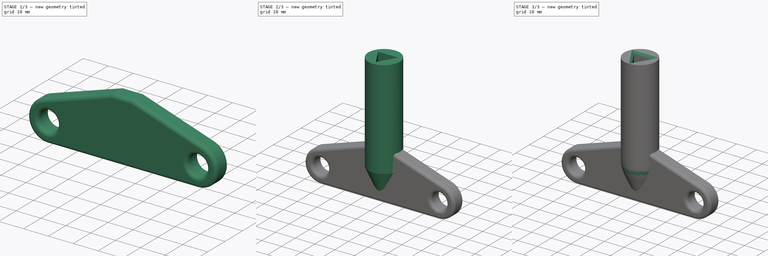
[diagram: build sequence overview — one tinted view per stage of 3, left to right]
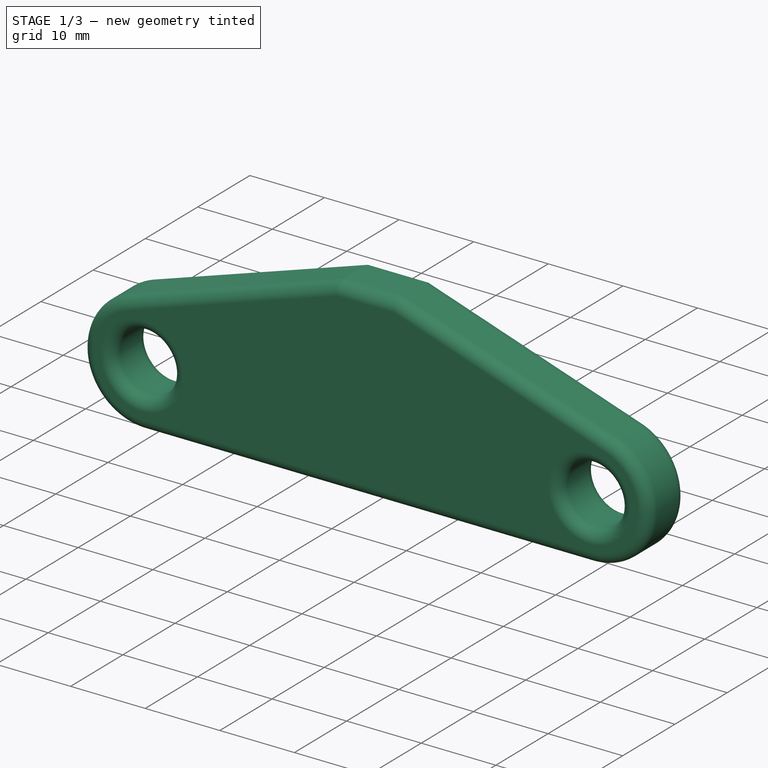
[diagram: stage 1 of 3 — iso view after this stage's code; geometry added in this stage tinted green]
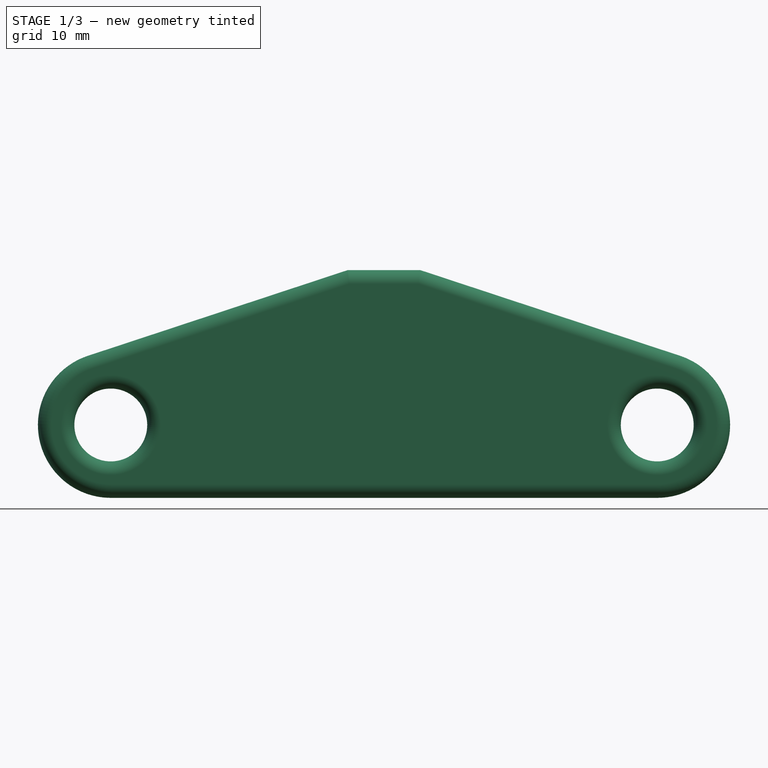
[diagram: stage 1 of 3 — front view after this stage's code; geometry added in this stage tinted green]
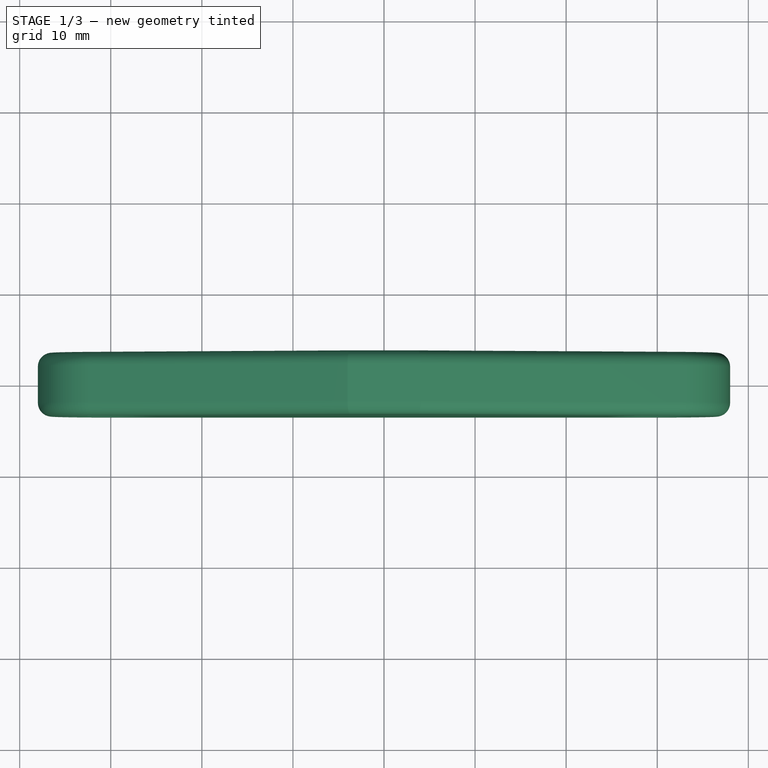
[diagram: stage 1 of 3 — top view after this stage's code; geometry added in this stage tinted green]
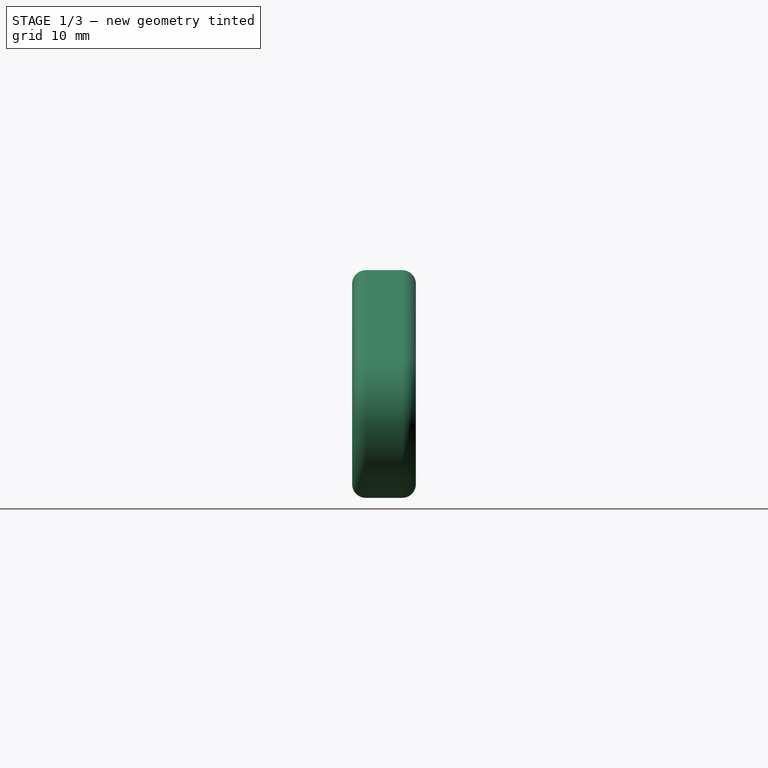
[diagram: stage 1 of 3 — right view after this stage's code; geometry added in this stage tinted green]
FCSTD DOCUMENT  (FreeCAD 0.19R24276 (Git))
Label: PoleKey
License: All rights reserved
LicenseURL: http://en.wikipedia.org/wiki/All_rights_reserved
objects: Sketcher::SketchObject×4, PartDesign::Pad×3, PartDesign::Fillet×2, PartDesign::Chamfer×2, PartDesign::Body×1
note: 19 computed .brp shape members not serialized (recipe doc carries the construction recipe); baked Part::Feature solids carry a one-line shape summary decoded from their .brp

FEATURE [Sketcher::SketchObject] Sketch  label="Template"
  FullyConstrained = true
  MapMode = 5
  Support = -> [XY_Plane]
  sketch-geometry (5):
    g0: Circle CenterX=0 CenterY=0 CenterZ=0 NormalX=0 NormalY=0 NormalZ=1 AngleXU=0 Radius=8
    g1: LineSegment StartX=-5.1 StartY=2.94449 StartZ=0 EndX=5.1 EndY=2.94449 EndZ=0
    g2: LineSegment StartX=5.1 StartY=2.94449 StartZ=0 EndX=0 EndY=-5.88897 EndZ=0
    g3: LineSegment StartX=0 StartY=-5.88897 StartZ=0 EndX=-5.1 EndY=2.94449 EndZ=0
    g4: Circle CenterX=0 CenterY=0 CenterZ=0 NormalX=0 NormalY=0 NormalZ=1 AngleXU=0 Radius=2.94449
  constraints (13):
    c: Radius(g0) = 8  'Radius'
    c: Horizontal(g1)
    c: Coincident(g1,g2)
    c: Coincident(g2,g3)
    c: Coincident(g3,g1)
    c: Equal(g3,g2)
    c: Equal(g2,g1)
    c: Tangent(g2,g4)
    c: Tangent(g1,g4)
    c: Tangent(g3,g4)
    c: Coincident(g4,g0)
    c: DistanceX(g1,g1) = 10.2
    c: Coincident(g0,g-1)
FEATURE [Sketcher::SketchObject] Sketch001
  AttachmentOffset = pos=(0,0,5) rot=(0,0,1;0rad)
  ExternalGeometry = -> [Sketch]
  FullyConstrained = true
  MapMode = 5
  Placement = pos=(0,0,5) rot=(0,0,1;0rad)
  Support = -> [XY_Plane]
  sketch-geometry (1):
    g0: Circle CenterX=0 CenterY=0 CenterZ=0 NormalX=0 NormalY=0 NormalZ=1 AngleXU=0 Radius=8
  constraints (2):
    c: Coincident(g0,g-3)
    c: Equal(g0,g-3)
FEATURE [Sketcher::SketchObject] Sketch002
  AttachmentOffset = pos=(0,0,55) rot=(0,0,1;0rad)
  ExternalGeometry = -> [Sketch]
  FullyConstrained = true
  MapMode = 5
  Placement = pos=(0,0,55) rot=(0,0,1;0rad)
  Support = -> [XY_Plane]
  expr: .AttachmentOffset.Base.z = <<Sketch001>>.AttachmentOffset.Base.z + <<Pad>>.Length
  sketch-geometry (4):
    g0: Circle CenterX=0 CenterY=0 CenterZ=0 NormalX=0 NormalY=0 NormalZ=1 AngleXU=0 Radius=8
    g1: LineSegment StartX=-5.1 StartY=2.94449 StartZ=0 EndX=5.1 EndY=2.94449 EndZ=0
    g2: LineSegment StartX=5.1 StartY=2.94449 StartZ=0 EndX=9e-16 EndY=-5.88897 EndZ=0
    g3: LineSegment StartX=9e-16 StartY=-5.88897 StartZ=0 EndX=-5.1 EndY=2.94449 EndZ=0
  constraints (8):
    c: Coincident(g0,g-3)
    c: Equal(g0,g-3)
    c: Coincident(g-6,g1)
    c: Coincident(g1,g-5)
    c: Coincident(g1,g2)
    c: Coincident(g2,g-6)
    c: Coincident(g2,g3)
    c: Coincident(g3,g1)
FEATURE [Sketcher::SketchObject] Sketch003
  FullyConstrained = true
  MapMode = 5
  Placement = pos=(0,0,0) rot=(1,0,0;1.5708rad)
  Support = -> [XZ_Plane]
  expr: Constraints[10] = <<Template>>.Constraints.Radius
  sketch-geometry (8):
    g0: LineSegment StartX=-30 StartY=0 StartZ=0 EndX=30 EndY=0 EndZ=0
    g1: ArcOfCircle CenterX=-30 CenterY=8 CenterZ=0 NormalX=0 NormalY=0 NormalZ=1 AngleXU=0 Radius=8 StartAngle=1.88941 EndAngle=4.71239
    g2: ArcOfCircle CenterX=30 CenterY=8 CenterZ=0 NormalX=0 NormalY=0 NormalZ=1 AngleXU=0 Radius=8 StartAngle=4.71239 EndAngle=7.53537
    g3: LineSegment StartX=-32.506 StartY=15.5974 StartZ=0 EndX=-4 EndY=25 EndZ=0
    g4: LineSegment StartX=-4 StartY=25 StartZ=0 EndX=4 EndY=25 EndZ=0
    g5: LineSegment StartX=4 StartY=25 StartZ=0 EndX=32.506 EndY=15.5974 EndZ=0
    g6: Circle CenterX=-30 CenterY=8 CenterZ=0 NormalX=0 NormalY=0 NormalZ=1 AngleXU=0 Radius=4
    g7: Circle CenterX=30 CenterY=8 CenterZ=0 NormalX=0 NormalY=0 NormalZ=1 AngleXU=0 Radius=4
  constraints (19):
    c: Horizontal(g0)
    c: Tangent(g0,g2) = -1.5708
    c: Tangent(g0,g1) = -1.5708
    c: Tangent(g1,g3) = 1.5708
    c: Coincident(g3,g4)
    c: Horizontal(g4)
    c: Coincident(g4,g5)
    c: Equal(g1,g2)
    c: Tangent(g2,g5) = 1.5708
    c: Equal(g3,g5)
    c: DistanceX(g4,g4) = 8
    c: DistanceY(g0,g3) = 25
    c: Radius(g1) = 8
    c: DistanceX(g0,g0) = 60
    c: Symmetric(g0,g0,g-1)
    c: Coincident(g6,g1)
    c: Coincident(g7,g2)
    c: Equal(g6,g7)
    c: Radius(g6) = 4
FEATURE [PartDesign::Pad] Pad002
  Direction = (1,1,1)
  Length = 7
  Length2 = 100
  Midplane = true
  Placement = pos=(0,0,0) rot=(1,0,0;1.5708rad)
  Profile = -> Sketch003
  Type = 0
FEATURE [PartDesign::Fillet] Fillet
  Base = -> Pad002 [Edge4,Edge3,Edge24,Edge21,Edge20,Edge23,Edge12,Edge13]
  BaseFeature = -> Pad002
  Placement = pos=(0,0,0) rot=(1,0,0;1.5708rad)
  Radius = 1.5
  SupportTransform = false
  expr: Radius = 1.5
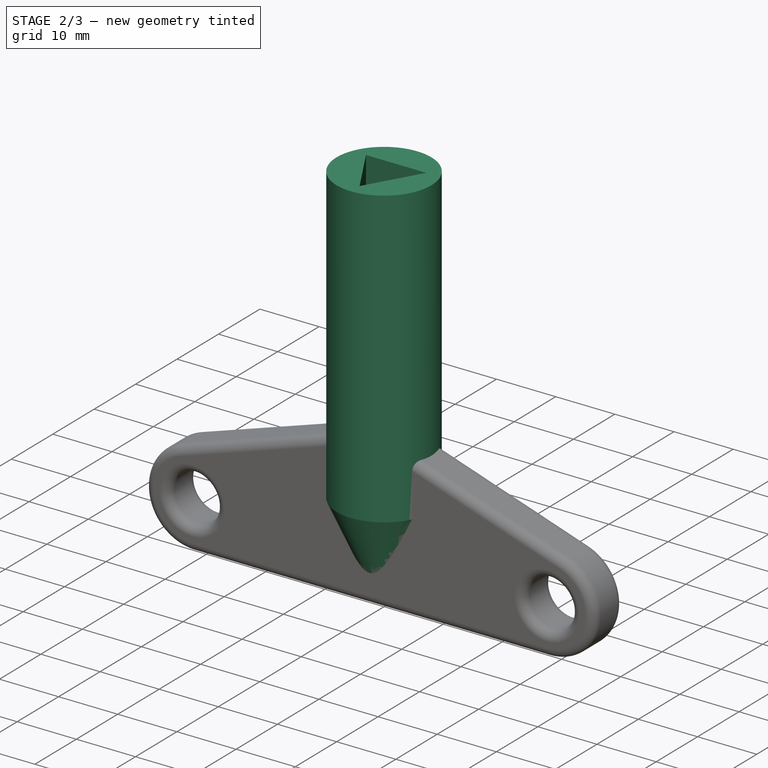
[diagram: stage 2 of 3 — iso view after this stage's code; geometry added in this stage tinted green]
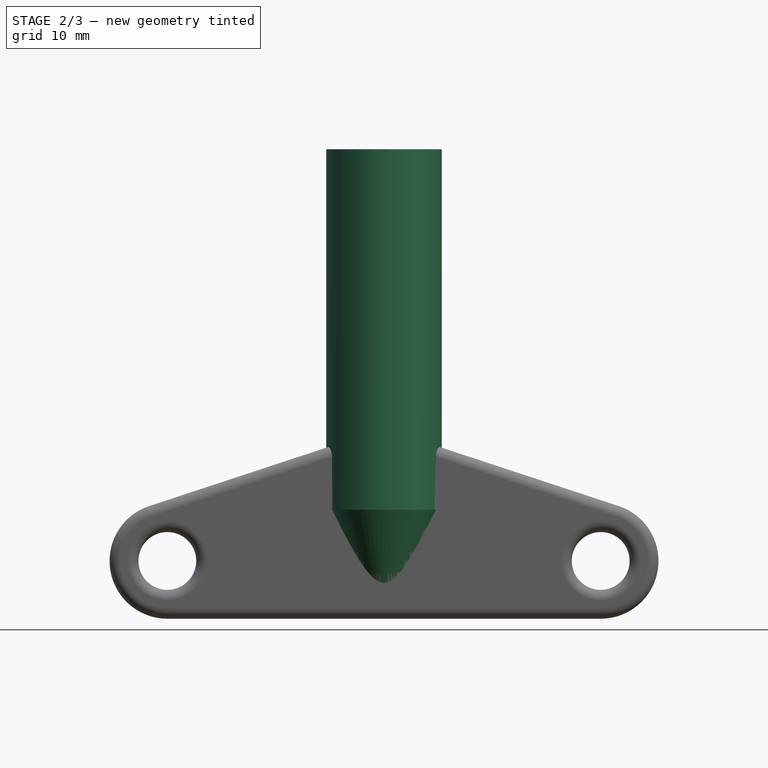
[diagram: stage 2 of 3 — front view after this stage's code; geometry added in this stage tinted green]
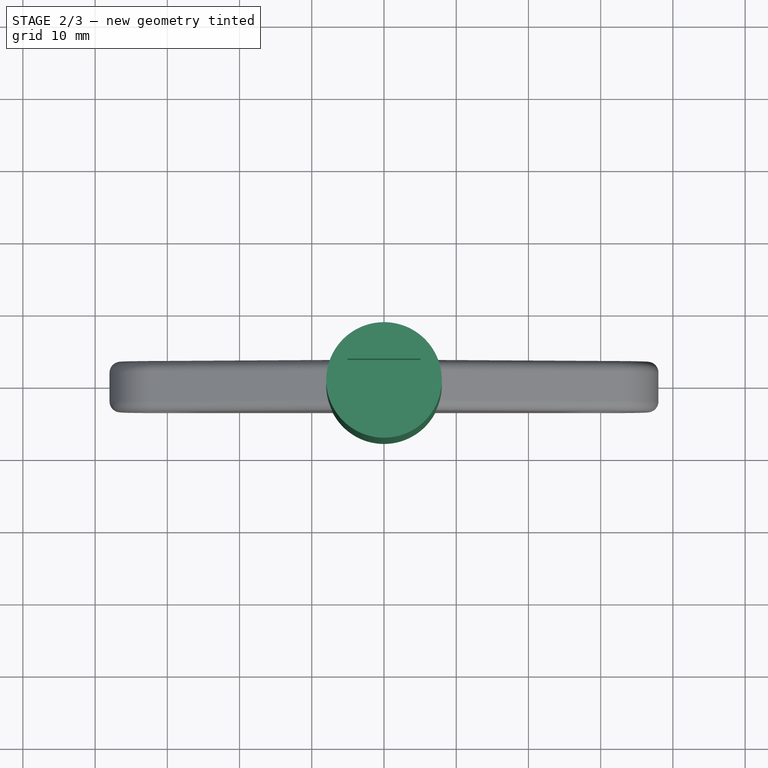
[diagram: stage 2 of 3 — top view after this stage's code; geometry added in this stage tinted green]
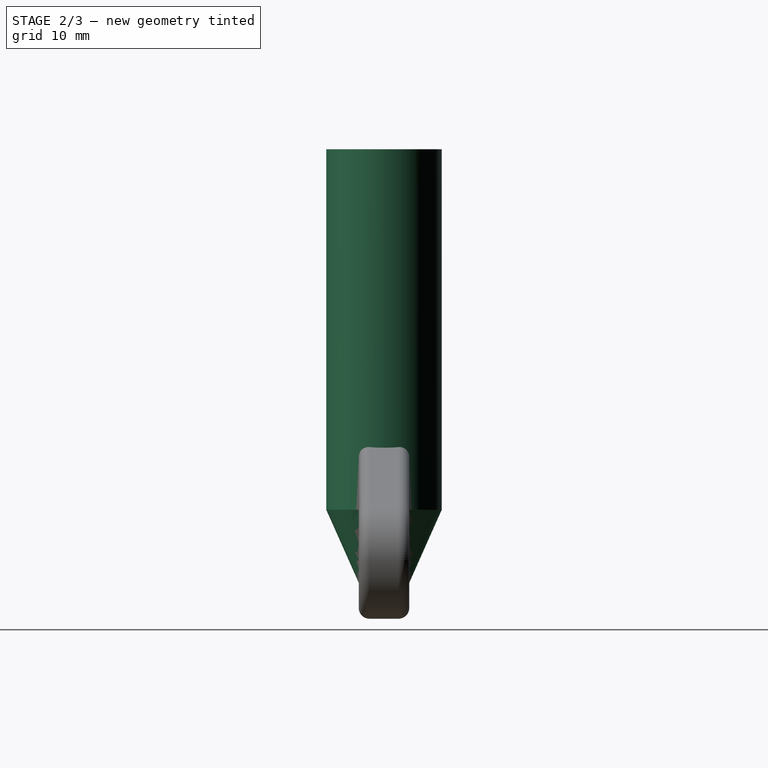
[diagram: stage 2 of 3 — right view after this stage's code; geometry added in this stage tinted green]
FEATURE [PartDesign::Pad] Pad
  BaseFeature = -> Fillet
  Direction = (1,1,1)
  Length = 50
  Length2 = 100
  Placement = pos=(0,0,0) rot=(1,0,0;1.5708rad)
  Profile = -> Sketch001
  Type = 0
FEATURE [PartDesign::Pad] Pad001
  BaseFeature = -> Pad
  Direction = (1,1,1)
  Length = 10
  Length2 = 100
  Placement = pos=(0,0,0) rot=(1,0,0;1.5708rad)
  Profile = -> Sketch002
  Refine = true
  Type = 0
FEATURE [PartDesign::Chamfer] Chamfer
  Angle = 66
  Base = -> Pad001 [Edge48,Edge54]
  BaseFeature = -> Pad001
  ChamferType = 2
  FlipDirection = false
  Placement = pos=(0,0,0) rot=(1,0,0;1.5708rad)
  Size = 4.49
  Size2 = 1
  SupportTransform = false
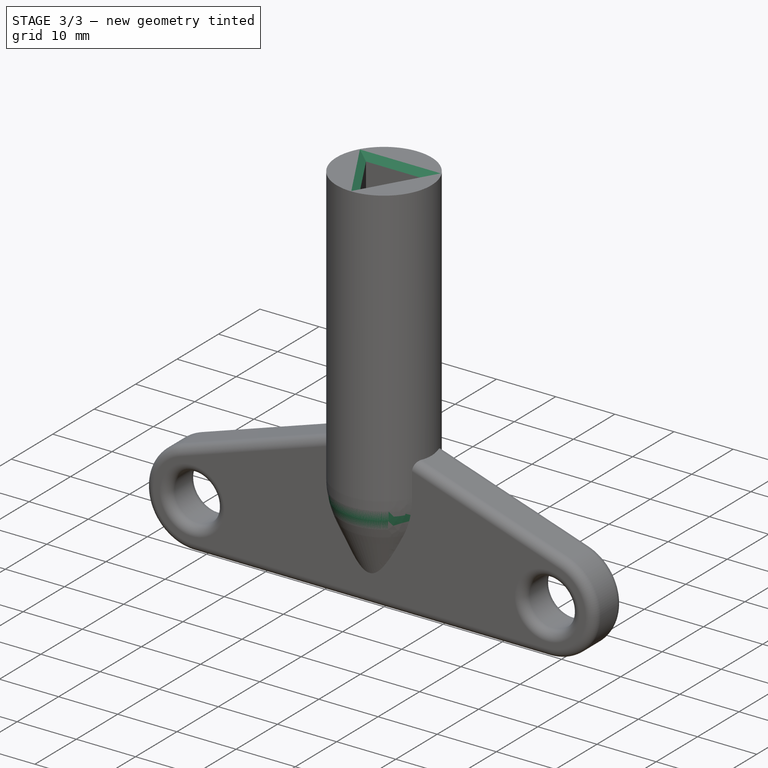
[diagram: stage 3 of 3 — iso view after this stage's code; geometry added in this stage tinted green]
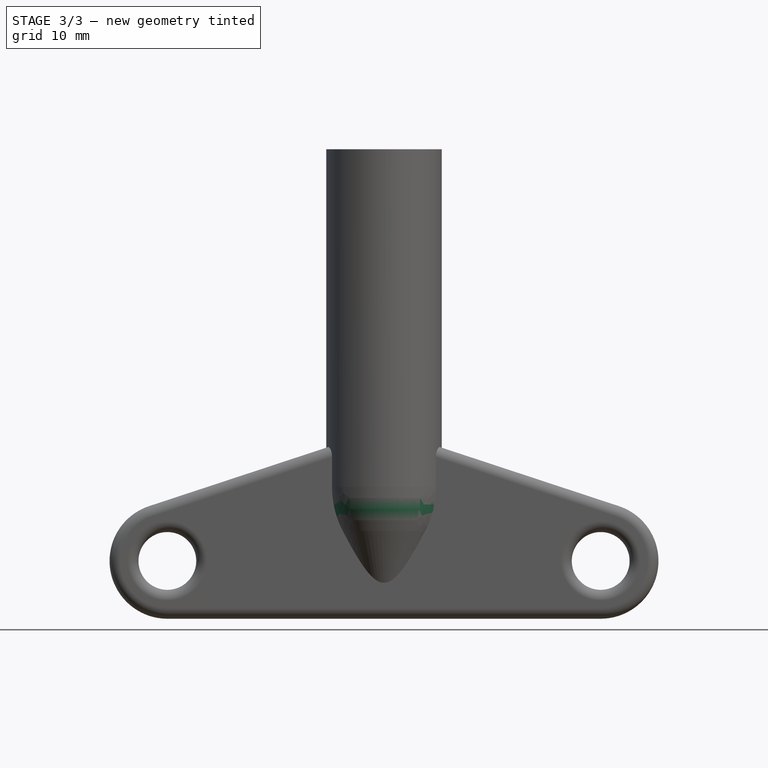
[diagram: stage 3 of 3 — front view after this stage's code; geometry added in this stage tinted green]
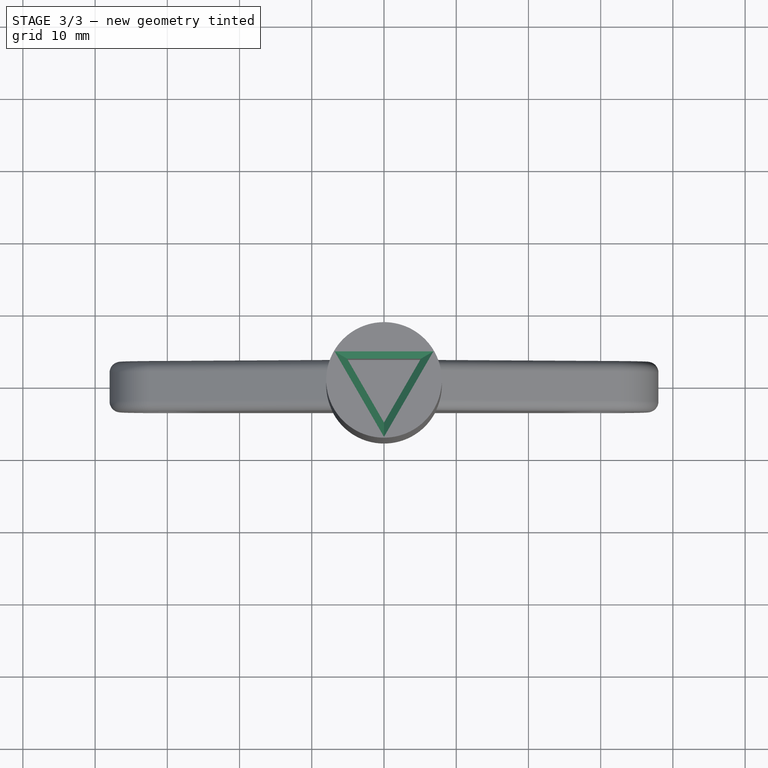
[diagram: stage 3 of 3 — top view after this stage's code; geometry added in this stage tinted green]
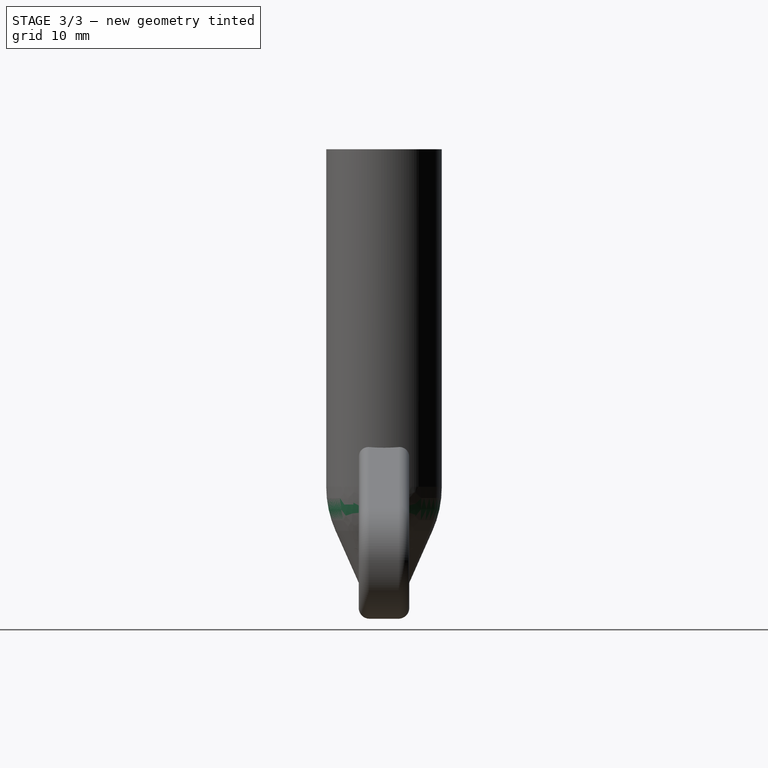
[diagram: stage 3 of 3 — right view after this stage's code; geometry added in this stage tinted green]
FEATURE [PartDesign::Chamfer] Chamfer001
  Angle = 45
  Base = -> Chamfer [Edge59,Edge57,Edge58]
  BaseFeature = -> Chamfer
  ChamferType = 0
  FlipDirection = false
  Placement = pos=(0,0,0) rot=(1,0,0;1.5708rad)
  Size = 1
  Size2 = 1
  SupportTransform = false
FEATURE [PartDesign::Fillet] Fillet001
  Base = -> Chamfer001 [Edge22,Edge12]
  BaseFeature = -> Chamfer001
  Placement = pos=(0,0,0) rot=(1,0,0;1.5708rad)
  Radius = 15
  SupportTransform = false
FEATURE [PartDesign::Body] Body
  Group = -> [Sketch,Sketch003,Pad002,Sketch001,Fillet,Pad,Sketch002,Pad001,Chamfer,Chamfer001,Fillet001]
  Origin = -> Origin
  Tip = -> Fillet001
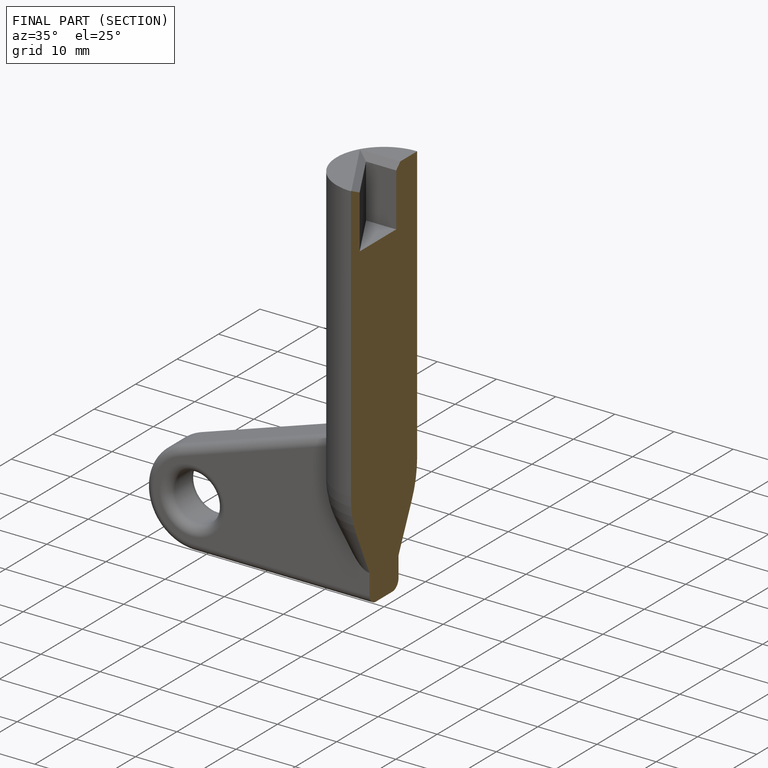
[diagram: finished part — half-section view (interior)]
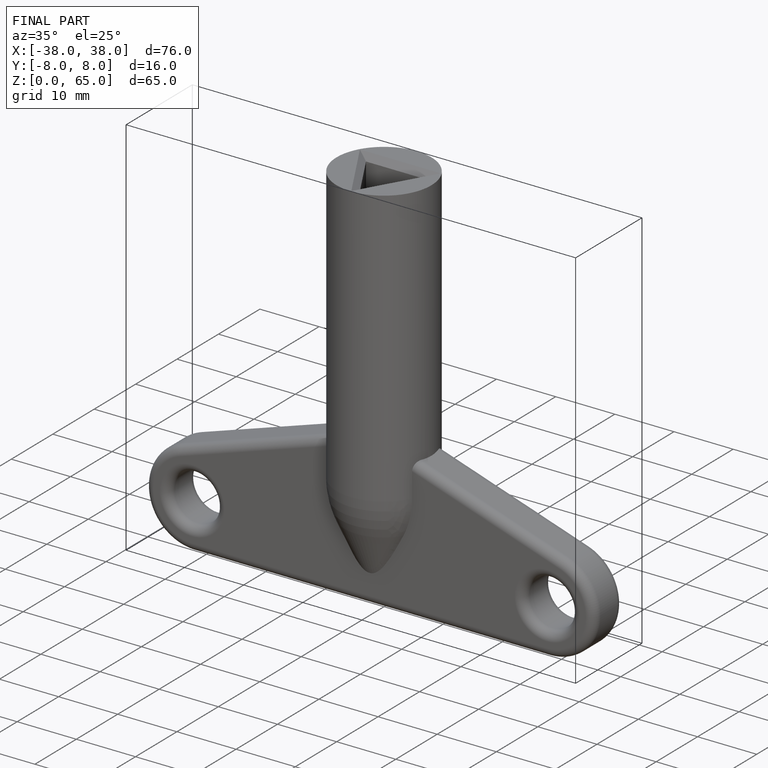
[diagram: finished part — iso view with bounding-box wireframe]
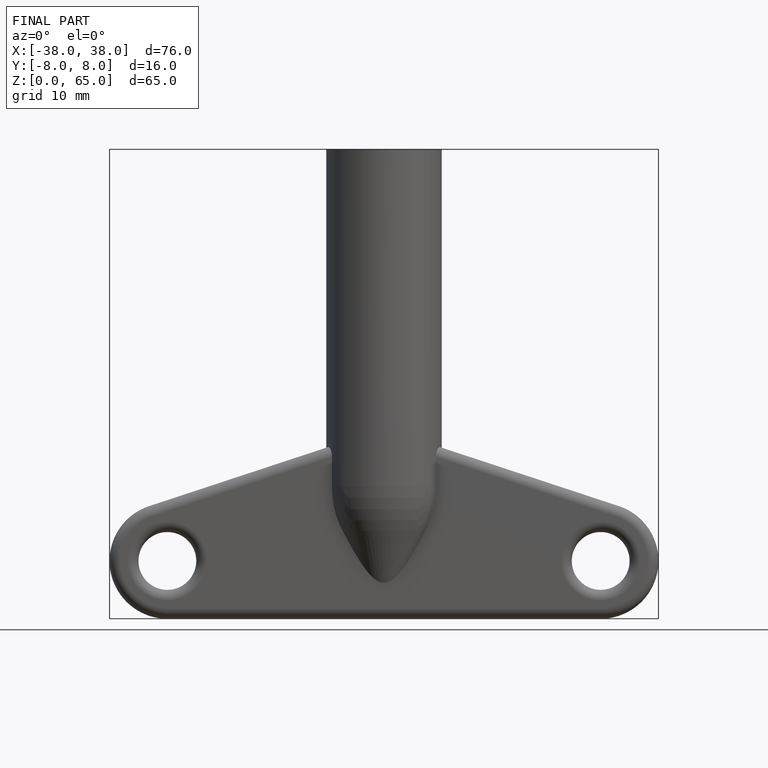
[diagram: finished part — front view with bounding-box wireframe]
